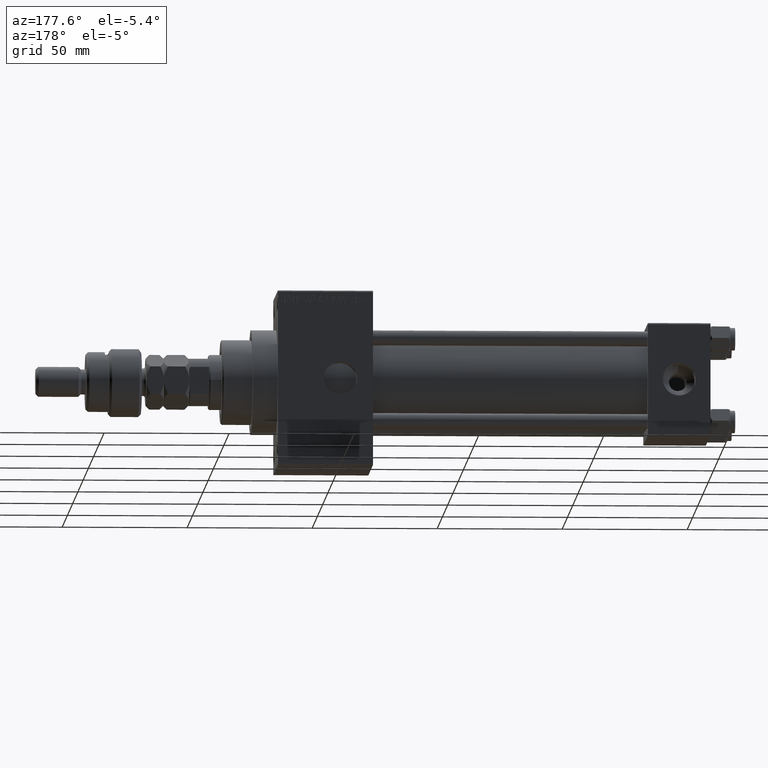
[diagram: clean part render]
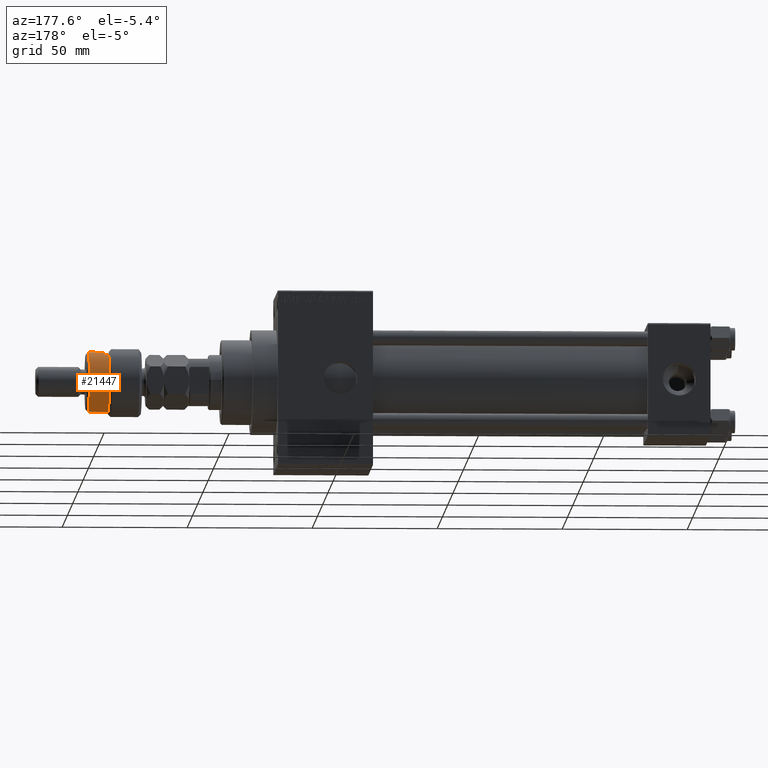
[diagram: same view with one face highlighted and labeled with its STEP entity id]
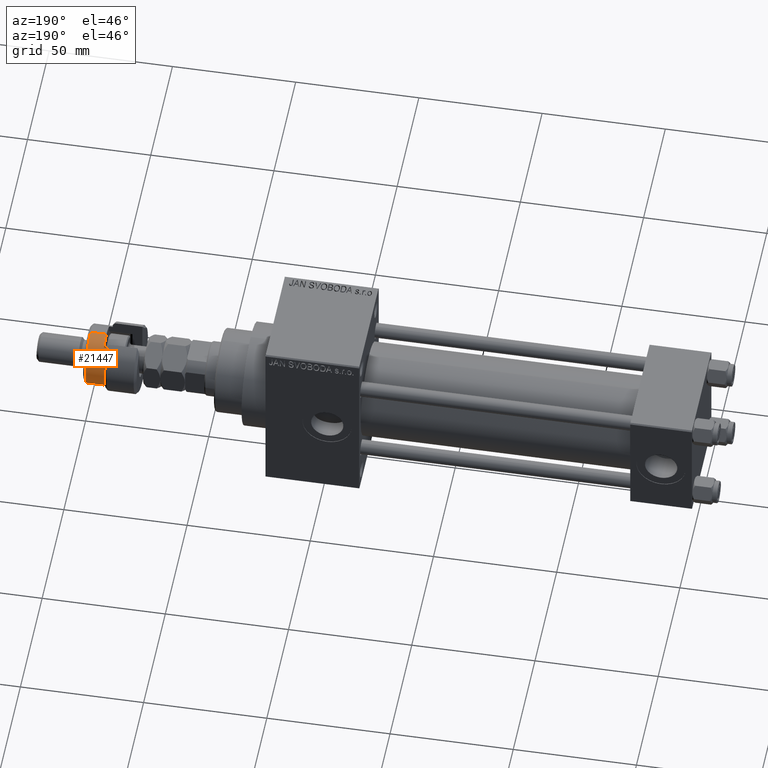
[diagram: same view with one face highlighted and labeled with its STEP entity id]
A machine part, auxiliary view. The second image highlights one B-rep face of the part: STEP entity #21447.
A second angle (auxiliary view) of the same face is appended — the face is thin or edge-on in the first view.
In plain terms, the highlighted cylindrical surface (edge-blend (fillet) strip) has radius 12 mm, axis along (-1, -0, 0).
Its self-contained STEP definition (entity closure, byte-faithful):
#208 = EDGE_CURVE ( 'NONE', #51299, #31028, #49687, .T. ) ;
#537 = VECTOR ( 'NONE', #51042, 1000.000000000000000 ) ;
#1181 = CARTESIAN_POINT ( 'NONE',  ( -12.00000000000000178, 0.000000000000000000, 14.50000000000000000 ) ) ;
#1198 = CIRCLE ( 'NONE', #21320, 12.00000000000000178 ) ;
#2347 = CYLINDRICAL_SURFACE ( 'NONE', #29984, 12.00000000000000178 ) ;
#3454 = EDGE_CURVE ( 'NONE', #51299, #25077, #47359, .T. ) ;
#3630 = DIRECTION ( 'NONE',  ( -1.000000000000000000, 0.000000000000000000, 0.000000000000000000 ) ) ;
#4519 = CIRCLE ( 'NONE', #21243, 12.00000000000000178 ) ;
#5665 = VECTOR ( 'NONE', #7669, 1000.000000000000000 ) ;
#6402 = VERTEX_POINT ( 'NONE', #45692 ) ;
#7669 = DIRECTION ( 'NONE',  ( -0.000000000000000000, -0.000000000000000000, -1.000000000000000000 ) ) ;
#11836 = CARTESIAN_POINT ( 'NONE',  ( -12.00000000000000178, 0.000000000000000000, 20.99999999999998224 ) ) ;
#11861 = CARTESIAN_POINT ( 'NONE',  ( 12.00000000000000178, 1.469576158976824144E-15, 22.00000000000000000 ) ) ;
#12803 = AXIS2_PLACEMENT_3D ( 'NONE', #43168, #36055, #39989 ) ;
#13459 = CARTESIAN_POINT ( 'NONE',  ( 0.000000000000000000, 0.000000000000000000, 13.00000000000000000 ) ) ;
#14942 = DIRECTION ( 'NONE',  ( -1.000000000000000000, 0.000000000000000000, 0.000000000000000000 ) ) ;
#15945 = DIRECTION ( 'NONE',  ( 0.000000000000000000, 0.000000000000000000, -1.000000000000000000 ) ) ;
#17194 = CARTESIAN_POINT ( 'NONE',  ( 12.00000000000000178, 1.469576158976824144E-15, 20.99999999999998224 ) ) ;
#18008 = DIRECTION ( 'NONE',  ( 0.000000000000000000, 0.000000000000000000, 1.000000000000000000 ) ) ;
#19509 = CARTESIAN_POINT ( 'NONE',  ( -12.00000000000000178, 0.000000000000000000, 22.00000000000000000 ) ) ;
#21243 = AXIS2_PLACEMENT_3D ( 'NONE', #13459, #33417, #41822 ) ;
#21320 = AXIS2_PLACEMENT_3D ( 'NONE', #35909, #15945, #3630 ) ;
#21447 = ADVANCED_FACE ( 'NONE', ( #50671 ), #2347, .T. ) ;
#21449 = CARTESIAN_POINT ( 'NONE',  ( -10.39230484541326760, 6.000000000000000000, 22.00000000000000000 ) ) ;
#23550 = ORIENTED_EDGE ( 'NONE', *, *, #45891, .T. ) ;
#24885 = EDGE_CURVE ( 'NONE', #34816, #36368, #30385, .T. ) ;
#25077 = VERTEX_POINT ( 'NONE', #1181 ) ;
#27410 = ORIENTED_EDGE ( 'NONE', *, *, #24885, .T. ) ;
#29984 = AXIS2_PLACEMENT_3D ( 'NONE', #38571, #47245, #14942 ) ;
#30375 = EDGE_CURVE ( 'NONE', #31028, #6402, #40205, .T. ) ;
#30385 = LINE ( 'NONE', #21449, #37680 ) ;
#31028 = VERTEX_POINT ( 'NONE', #17194 ) ;
#32250 = EDGE_LOOP ( 'NONE', ( #43605, #40949, #23550, #27410, #34833, #34031 ) ) ;
#33417 = DIRECTION ( 'NONE',  ( 0.000000000000000000, 0.000000000000000000, 1.000000000000000000 ) ) ;
#34031 = ORIENTED_EDGE ( 'NONE', *, *, #3454, .F. ) ;
#34816 = VERTEX_POINT ( 'NONE', #45894 ) ;
#34833 = ORIENTED_EDGE ( 'NONE', *, *, #48358, .F. ) ;
#35909 = CARTESIAN_POINT ( 'NONE',  ( 0.000000000000000000, 0.000000000000000000, 14.50000000000000000 ) ) ;
#36055 = DIRECTION ( 'NONE',  ( 0.000000000000000000, 0.000000000000000000, -1.000000000000000000 ) ) ;
#36368 = VERTEX_POINT ( 'NONE', #47069 ) ;
#37680 = VECTOR ( 'NONE', #18008, 1000.000000000000000 ) ;
#38571 = CARTESIAN_POINT ( 'NONE',  ( 0.000000000000000000, 0.000000000000000000, 22.00000000000000000 ) ) ;
#39989 = DIRECTION ( 'NONE',  ( 1.000000000000000000, 0.000000000000000000, 0.000000000000000000 ) ) ;
#40205 = LINE ( 'NONE', #11861, #5665 ) ;
#40949 = ORIENTED_EDGE ( 'NONE', *, *, #30375, .T. ) ;
#41822 = DIRECTION ( 'NONE',  ( 1.000000000000000000, 0.000000000000000000, 0.000000000000000000 ) ) ;
#43168 = CARTESIAN_POINT ( 'NONE',  ( 0.000000000000000000, 0.000000000000000000, 20.99999999999998224 ) ) ;
#43605 = ORIENTED_EDGE ( 'NONE', *, *, #208, .T. ) ;
#45692 = CARTESIAN_POINT ( 'NONE',  ( 12.00000000000000178, 1.469576158976824144E-15, 13.00000000000000000 ) ) ;
#45891 = EDGE_CURVE ( 'NONE', #6402, #34816, #4519, .T. ) ;
#45894 = CARTESIAN_POINT ( 'NONE',  ( -10.39230484541326760, 6.000000000000000000, 13.00000000000000000 ) ) ;
#47069 = CARTESIAN_POINT ( 'NONE',  ( -10.39230484541326582, 5.999999999999998224, 14.50000000000000000 ) ) ;
#47245 = DIRECTION ( 'NONE',  ( -0.000000000000000000, -0.000000000000000000, -1.000000000000000000 ) ) ;
#47359 = LINE ( 'NONE', #19509, #537 ) ;
#48358 = EDGE_CURVE ( 'NONE', #25077, #36368, #1198, .T. ) ;
#49687 = CIRCLE ( 'NONE', #12803, 12.00000000000000178 ) ;
#50671 = FACE_OUTER_BOUND ( 'NONE', #32250, .T. ) ;
#51042 = DIRECTION ( 'NONE',  ( -0.000000000000000000, -0.000000000000000000, -1.000000000000000000 ) ) ;
#51299 = VERTEX_POINT ( 'NONE', #11836 ) ;